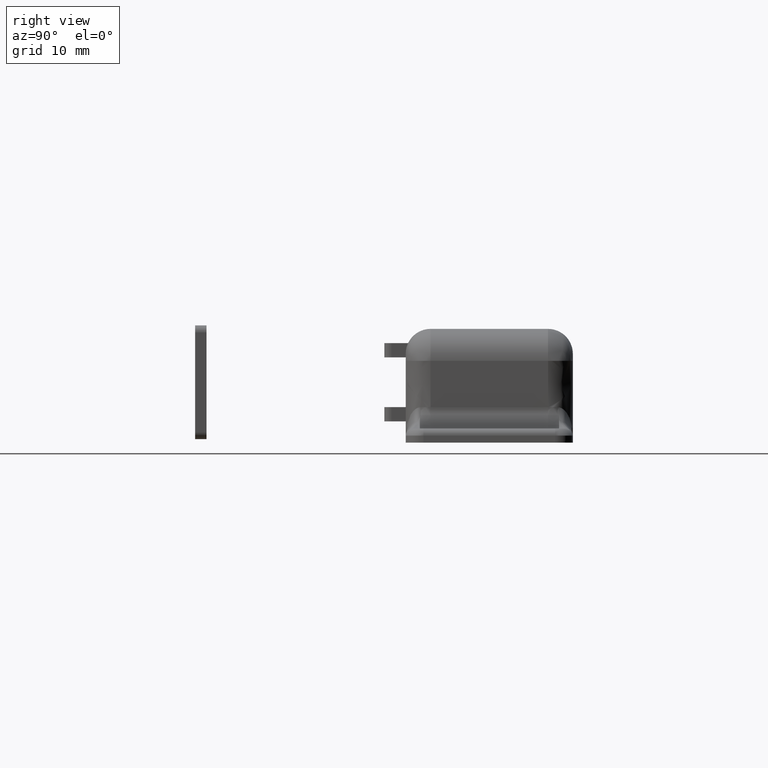
[diagram: clean part render]
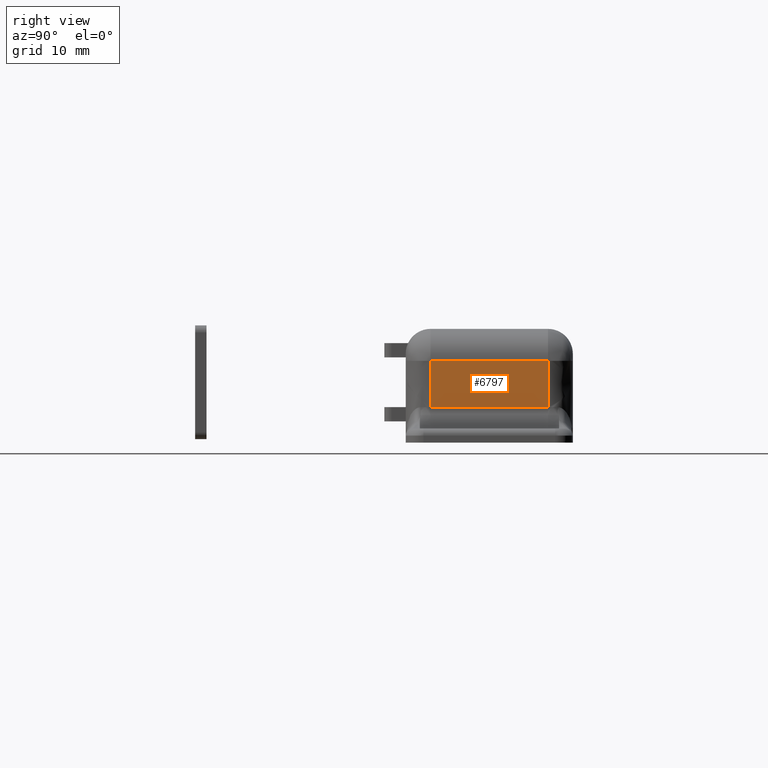
[diagram: same view with one face highlighted and labeled with its STEP entity id]
A machine part, right view. The second image highlights one B-rep face of the part: STEP entity #6797.
In plain terms, the highlighted face is a freeform B-spline surface patch.
Its self-contained STEP definition (entity closure, byte-faithful):
#4789=CARTESIAN_POINT('',(32.500000000000000,-8.249999999999870,5.0));
#4790=VERTEX_POINT('',#4789);
#4850=CARTESIAN_POINT('',(32.500000000000000,8.250000000000110,5.0));
#4851=VERTEX_POINT('',#4850);
#4865=CARTESIAN_POINT('',(32.500000000000000,-8.249999999999870,5.0));
#4866=CARTESIAN_POINT('',(32.500000000000000,8.250000000000110,5.0));
#4867=QUASI_UNIFORM_CURVE('',1,(#4865,#4866),.UNSPECIFIED.,.F.,.U.);
#4868=EDGE_CURVE('',#4790,#4851,#4867,.T.);
#6481=CARTESIAN_POINT('',(32.500000000000000,-8.249999999999870,11.500000000000000));
#6482=VERTEX_POINT('',#6481);
#6526=CARTESIAN_POINT('',(32.500000000000000,8.250000000000110,11.500000000000000));
#6527=VERTEX_POINT('',#6526);
#6549=CARTESIAN_POINT('',(32.500000000000000,8.250000000000110,11.500000000000000));
#6550=CARTESIAN_POINT('',(32.500000000000000,-8.249999999999870,11.500000000000000));
#6551=QUASI_UNIFORM_CURVE('',1,(#6549,#6550),.UNSPECIFIED.,.F.,.U.);
#6552=EDGE_CURVE('',#6527,#6482,#6551,.T.);
#6710=CARTESIAN_POINT('',(32.500000000000000,8.250000000000110,5.0));
#6711=CARTESIAN_POINT('',(32.500000000000000,8.250000000000110,11.500000000000000));
#6712=QUASI_UNIFORM_CURVE('',1,(#6710,#6711),.UNSPECIFIED.,.F.,.U.);
#6713=EDGE_CURVE('',#4851,#6527,#6712,.T.);
#6747=CARTESIAN_POINT('',(32.500000000000000,-8.249999999999870,11.500000000000000));
#6748=CARTESIAN_POINT('',(32.500000000000000,-8.249999999999870,5.0));
#6749=QUASI_UNIFORM_CURVE('',1,(#6747,#6748),.UNSPECIFIED.,.F.,.U.);
#6750=EDGE_CURVE('',#6482,#4790,#6749,.T.);
#6786=CARTESIAN_POINT('',(32.500000000000000,-9.074174968019669,4.675325012598262));
#6787=CARTESIAN_POINT('',(32.500000000000000,-9.074174968019669,11.824675161745329));
#6788=CARTESIAN_POINT('',(32.500000000000000,9.074175410584394,4.675325012598262));
#6789=CARTESIAN_POINT('',(32.500000000000000,9.074175410584394,11.824675161745329));
#6790=B_SPLINE_SURFACE_WITH_KNOTS('',1,1,((#6786,#6788),(#6787,#6789)),.UNSPECIFIED.,.F.,.F.,.U.,(2,2),(2,2),(0.0,7.149350149147066),(0.0,18.148350378604061),.UNSPECIFIED.);
#6791=ORIENTED_EDGE('',*,*,#6750,.T.);
#6792=ORIENTED_EDGE('',*,*,#4868,.T.);
#6793=ORIENTED_EDGE('',*,*,#6713,.T.);
#6794=ORIENTED_EDGE('',*,*,#6552,.T.);
#6795=EDGE_LOOP('',(#6791,#6792,#6793,#6794));
#6796=FACE_OUTER_BOUND('',#6795,.T.);
#6797=ADVANCED_FACE('',(#6796),#6790,.F.);